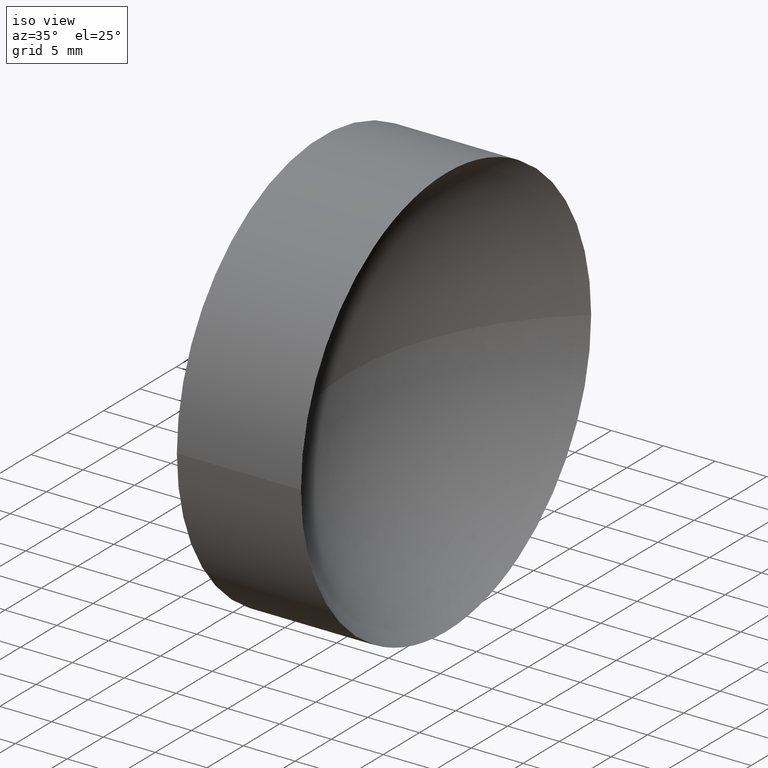
[diagram: clean part render]
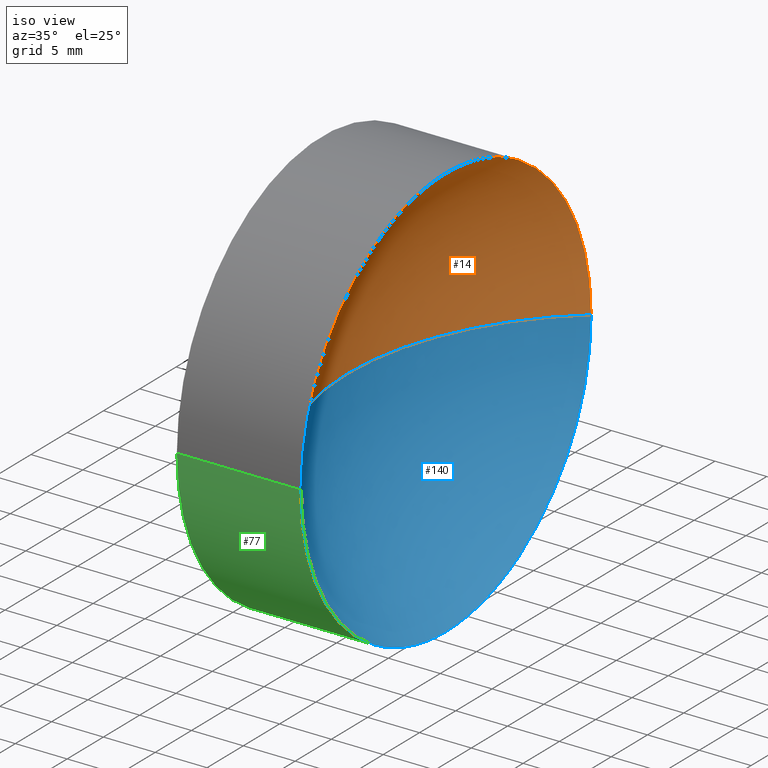
[diagram: same view with three faces highlighted in distinct colors, each labeled with its STEP entity id]
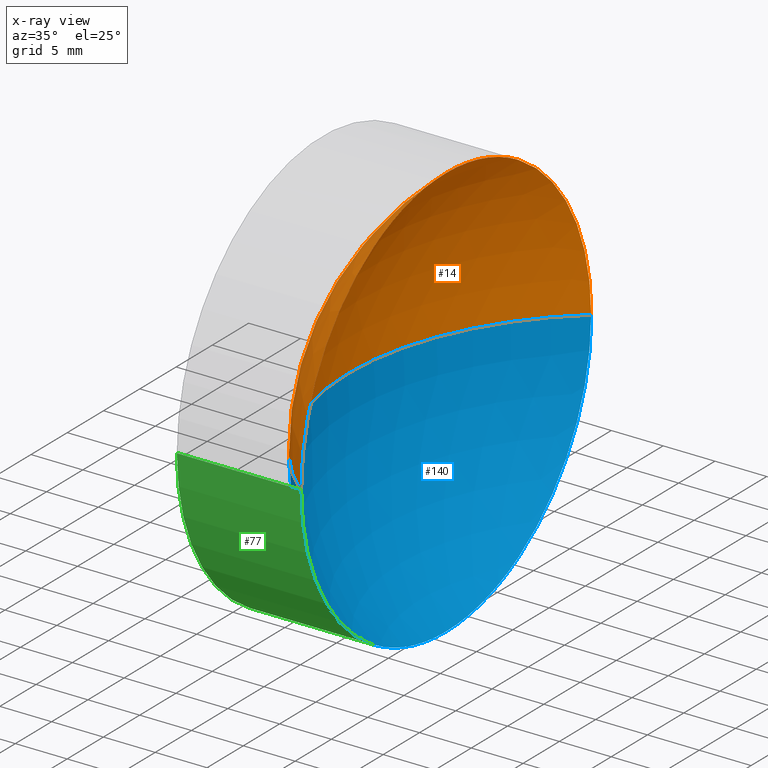
[diagram: x-ray of the same camera — body ghosted, the three highlighted faces saturated]
A machine part, iso view with three faces highlighted in distinct colors.
The next image is the same camera in x-ray (body ghosted, the three faces saturated) — at least one of them is partly hidden behind the body in this view.
Their STEP definitions:

[orange] entity #14 — the highlighted spherical surface has radius 25.84 mm.
#8 = DIRECTION ( 'NONE',  ( 0.0000000000000000000, -1.000000000000000000, 0.0000000000000000000 ) ) ;
#10 = CIRCLE ( 'NONE', #156, 25.84000000000000300 ) ;
#12 = ORIENTED_EDGE ( 'NONE', *, *, #75, .T. ) ;
#14 = ADVANCED_FACE ( 'NONE', ( #163 ), #119, .F. ) ;
#21 = CARTESIAN_POINT ( 'NONE',  ( 126.9537358582576400, 65.15745182658618300, 0.0000000000000000000 ) ) ;
#22 = DIRECTION ( 'NONE',  ( 0.0000000000000000000, 0.0000000000000000000, 1.000000000000000000 ) ) ;
#24 = CARTESIAN_POINT ( 'NONE',  ( 126.9537358582576400, 45.15745182658619700, 0.0000000000000000000 ) ) ;
#30 = VERTEX_POINT ( 'NONE', #24 ) ;
#35 = ORIENTED_EDGE ( 'NONE', *, *, #93, .F. ) ;
#38 = CARTESIAN_POINT ( 'NONE',  ( 143.3154472601862300, 65.15745182658621100, 0.0000000000000000000 ) ) ;
#52 = DIRECTION ( 'NONE',  ( 0.0000000000000000000, -1.000000000000000000, -1.224646799147353200E-016 ) ) ;
#54 = EDGE_CURVE ( 'NONE', #91, #74, #10, .T. ) ;
#62 = CIRCLE ( 'NONE', #161, 25.84000000000000300 ) ;
#64 = CARTESIAN_POINT ( 'NONE',  ( 143.3154472601862300, 65.15745182658621100, 0.0000000000000000000 ) ) ;
#74 = VERTEX_POINT ( 'NONE', #101 ) ;
#75 = EDGE_CURVE ( 'NONE', #30, #74, #62, .T. ) ;
#91 = VERTEX_POINT ( 'NONE', #103 ) ;
#92 = AXIS2_PLACEMENT_3D ( 'NONE', #21, #149, #8 ) ;
#93 = EDGE_CURVE ( 'NONE', #30, #91, #104, .T. ) ;
#101 = CARTESIAN_POINT ( 'NONE',  ( 117.4754472601862400, 65.15745182658622500, 0.0000000000000000000 ) ) ;
#103 = CARTESIAN_POINT ( 'NONE',  ( 126.9537358582576400, 85.15745182658621100, 2.449293598294705700E-015 ) ) ;
#104 = CIRCLE ( 'NONE', #92, 20.00000000000001800 ) ;
#114 = DIRECTION ( 'NONE',  ( -1.074132183267372700E-015, -1.000000000000000000, 0.0000000000000000000 ) ) ;
#115 = ORIENTED_EDGE ( 'NONE', *, *, #54, .F. ) ;
#117 = DIRECTION ( 'NONE',  ( 0.0000000000000000000, -0.0000000000000000000, -1.000000000000000000 ) ) ;
#119 = SPHERICAL_SURFACE ( 'NONE', #123, 25.84000000000000300 ) ;
#123 = AXIS2_PLACEMENT_3D ( 'NONE', #64, #22, #114 ) ;
#130 = CARTESIAN_POINT ( 'NONE',  ( 143.3154472601862300, 65.15745182658621100, 0.0000000000000000000 ) ) ;
#131 = EDGE_LOOP ( 'NONE', ( #115, #35, #12 ) ) ;
#136 = DIRECTION ( 'NONE',  ( -1.000000000000000000, 0.0000000000000000000, 0.0000000000000000000 ) ) ;
#147 = DIRECTION ( 'NONE',  ( -7.946652182046252500E-032, -1.224646799147353200E-016, 1.000000000000000000 ) ) ;
#149 = DIRECTION ( 'NONE',  ( -1.000000000000000000, 6.488933942079480100E-016, -0.0000000000000000000 ) ) ;
#156 = AXIS2_PLACEMENT_3D ( 'NONE', #130, #147, #52 ) ;
#161 = AXIS2_PLACEMENT_3D ( 'NONE', #38, #117, #136 ) ;
#163 = FACE_OUTER_BOUND ( 'NONE', #131, .T. ) ;

[blue] entity #140 — the highlighted spherical surface has radius 25.84 mm.
#2 = DIRECTION ( 'NONE',  ( -1.000000000000000000, 6.488933942079480100E-016, -0.0000000000000000000 ) ) ;
#9 = DIRECTION ( 'NONE',  ( 0.0000000000000000000, 0.0000000000000000000, 1.000000000000000000 ) ) ;
#10 = CIRCLE ( 'NONE', #156, 25.84000000000000300 ) ;
#17 = CARTESIAN_POINT ( 'NONE',  ( 126.9537358582576400, 65.15745182658618300, 0.0000000000000000000 ) ) ;
#19 = DIRECTION ( 'NONE',  ( 0.0000000000000000000, -1.000000000000000000, 0.0000000000000000000 ) ) ;
#24 = CARTESIAN_POINT ( 'NONE',  ( 126.9537358582576400, 45.15745182658619700, 0.0000000000000000000 ) ) ;
#30 = VERTEX_POINT ( 'NONE', #24 ) ;
#38 = CARTESIAN_POINT ( 'NONE',  ( 143.3154472601862300, 65.15745182658621100, 0.0000000000000000000 ) ) ;
#40 = DIRECTION ( 'NONE',  ( -1.074132183267372700E-015, -1.000000000000000000, 0.0000000000000000000 ) ) ;
#44 = FACE_OUTER_BOUND ( 'NONE', #108, .T. ) ;
#48 = EDGE_CURVE ( 'NONE', #91, #30, #49, .T. ) ;
#49 = CIRCLE ( 'NONE', #143, 20.00000000000001800 ) ;
#52 = DIRECTION ( 'NONE',  ( 0.0000000000000000000, -1.000000000000000000, -1.224646799147353200E-016 ) ) ;
#54 = EDGE_CURVE ( 'NONE', #91, #74, #10, .T. ) ;
#62 = CIRCLE ( 'NONE', #161, 25.84000000000000300 ) ;
#74 = VERTEX_POINT ( 'NONE', #101 ) ;
#75 = EDGE_CURVE ( 'NONE', #30, #74, #62, .T. ) ;
#81 = ORIENTED_EDGE ( 'NONE', *, *, #54, .T. ) ;
#91 = VERTEX_POINT ( 'NONE', #103 ) ;
#101 = CARTESIAN_POINT ( 'NONE',  ( 117.4754472601862400, 65.15745182658622500, 0.0000000000000000000 ) ) ;
#103 = CARTESIAN_POINT ( 'NONE',  ( 126.9537358582576400, 85.15745182658621100, 2.449293598294705700E-015 ) ) ;
#106 = ORIENTED_EDGE ( 'NONE', *, *, #75, .F. ) ;
#108 = EDGE_LOOP ( 'NONE', ( #150, #81, #106 ) ) ;
#110 = SPHERICAL_SURFACE ( 'NONE', #112, 25.84000000000000300 ) ;
#112 = AXIS2_PLACEMENT_3D ( 'NONE', #160, #9, #40 ) ;
#117 = DIRECTION ( 'NONE',  ( 0.0000000000000000000, -0.0000000000000000000, -1.000000000000000000 ) ) ;
#130 = CARTESIAN_POINT ( 'NONE',  ( 143.3154472601862300, 65.15745182658621100, 0.0000000000000000000 ) ) ;
#136 = DIRECTION ( 'NONE',  ( -1.000000000000000000, 0.0000000000000000000, 0.0000000000000000000 ) ) ;
#140 = ADVANCED_FACE ( 'NONE', ( #44 ), #110, .F. ) ;
#143 = AXIS2_PLACEMENT_3D ( 'NONE', #17, #2, #19 ) ;
#147 = DIRECTION ( 'NONE',  ( -7.946652182046252500E-032, -1.224646799147353200E-016, 1.000000000000000000 ) ) ;
#150 = ORIENTED_EDGE ( 'NONE', *, *, #48, .F. ) ;
#156 = AXIS2_PLACEMENT_3D ( 'NONE', #130, #147, #52 ) ;
#160 = CARTESIAN_POINT ( 'NONE',  ( 143.3154472601862300, 65.15745182658621100, 0.0000000000000000000 ) ) ;
#161 = AXIS2_PLACEMENT_3D ( 'NONE', #38, #117, #136 ) ;

[green] entity #77 — the highlighted cylindrical surface (partial cylindrical patch) has radius 20 mm, axis along (-1, 0, -0).
#2 = DIRECTION ( 'NONE',  ( -1.000000000000000000, 6.488933942079480100E-016, -0.0000000000000000000 ) ) ;
#3 = DIRECTION ( 'NONE',  ( -1.000000000000000000, 6.488933942079480100E-016, -0.0000000000000000000 ) ) ;
#4 = ORIENTED_EDGE ( 'NONE', *, *, #109, .T. ) ;
#5 = VERTEX_POINT ( 'NONE', #89 ) ;
#15 = ORIENTED_EDGE ( 'NONE', *, *, #107, .F. ) ;
#16 = AXIS2_PLACEMENT_3D ( 'NONE', #99, #111, #79 ) ;
#17 = CARTESIAN_POINT ( 'NONE',  ( 126.9537358582576400, 65.15745182658618300, 0.0000000000000000000 ) ) ;
#18 = LINE ( 'NONE', #145, #125 ) ;
#19 = DIRECTION ( 'NONE',  ( 0.0000000000000000000, -1.000000000000000000, 0.0000000000000000000 ) ) ;
#20 = CYLINDRICAL_SURFACE ( 'NONE', #16, 20.00000000000001100 ) ;
#24 = CARTESIAN_POINT ( 'NONE',  ( 126.9537358582576400, 45.15745182658619700, 0.0000000000000000000 ) ) ;
#25 = DIRECTION ( 'NONE',  ( -6.938893903907227400E-016, -1.000000000000000000, 0.0000000000000000000 ) ) ;
#27 = CIRCLE ( 'NONE', #133, 20.00000000000000400 ) ;
#30 = VERTEX_POINT ( 'NONE', #24 ) ;
#39 = EDGE_CURVE ( 'NONE', #91, #102, #18, .T. ) ;
#48 = EDGE_CURVE ( 'NONE', #91, #30, #49, .T. ) ;
#49 = CIRCLE ( 'NONE', #143, 20.00000000000001800 ) ;
#53 = EDGE_LOOP ( 'NONE', ( #58, #159, #4, #15 ) ) ;
#58 = ORIENTED_EDGE ( 'NONE', *, *, #39, .F. ) ;
#63 = VECTOR ( 'NONE', #3, 1000.000000000000000 ) ;
#65 = DIRECTION ( 'NONE',  ( -1.000000000000000000, 6.488933942079480100E-016, -0.0000000000000000000 ) ) ;
#67 = LINE ( 'NONE', #88, #63 ) ;
#77 = ADVANCED_FACE ( 'NONE', ( #129 ), #20, .T. ) ;
#79 = DIRECTION ( 'NONE',  ( -6.938893903907224400E-016, -1.000000000000000000, 0.0000000000000000000 ) ) ;
#88 = CARTESIAN_POINT ( 'NONE',  ( 110.0147892488423500, 45.15745182658618300, 0.0000000000000000000 ) ) ;
#89 = CARTESIAN_POINT ( 'NONE',  ( 114.9754472601862000, 45.15745182658619000, 0.0000000000000000000 ) ) ;
#91 = VERTEX_POINT ( 'NONE', #103 ) ;
#99 = CARTESIAN_POINT ( 'NONE',  ( 110.0147892488423600, 65.15745182658619700, 0.0000000000000000000 ) ) ;
#102 = VERTEX_POINT ( 'NONE', #113 ) ;
#103 = CARTESIAN_POINT ( 'NONE',  ( 126.9537358582576400, 85.15745182658621100, 2.449293598294705700E-015 ) ) ;
#107 = EDGE_CURVE ( 'NONE', #102, #5, #27, .T. ) ;
#109 = EDGE_CURVE ( 'NONE', #30, #5, #67, .T. ) ;
#111 = DIRECTION ( 'NONE',  ( -1.000000000000000000, 6.488933942079480100E-016, -0.0000000000000000000 ) ) ;
#113 = CARTESIAN_POINT ( 'NONE',  ( 114.9754472601862300, 85.15745182658619700, 2.449293598294710100E-015 ) ) ;
#125 = VECTOR ( 'NONE', #151, 1000.000000000000000 ) ;
#129 = FACE_OUTER_BOUND ( 'NONE', #53, .T. ) ;
#133 = AXIS2_PLACEMENT_3D ( 'NONE', #162, #65, #25 ) ;
#143 = AXIS2_PLACEMENT_3D ( 'NONE', #17, #2, #19 ) ;
#145 = CARTESIAN_POINT ( 'NONE',  ( 110.0147892488423800, 85.15745182658621100, 2.449293598294708100E-015 ) ) ;
#151 = DIRECTION ( 'NONE',  ( -1.000000000000000000, 6.488933942079480100E-016, -0.0000000000000000000 ) ) ;
#159 = ORIENTED_EDGE ( 'NONE', *, *, #48, .T. ) ;
#162 = CARTESIAN_POINT ( 'NONE',  ( 114.9754472601862100, 65.15745182658619700, 0.0000000000000000000 ) ) ;